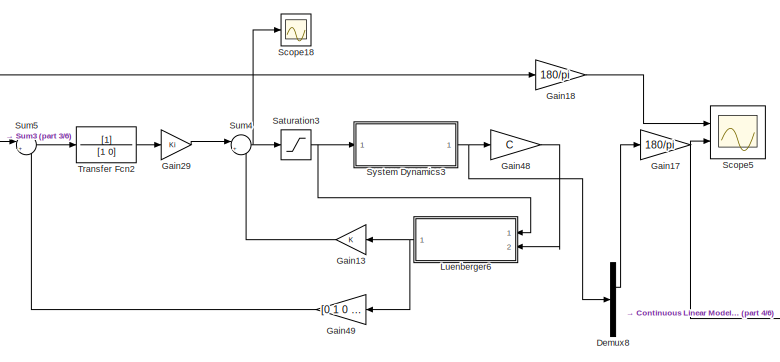
[diagram: root canvas - part 1/6, top center region]
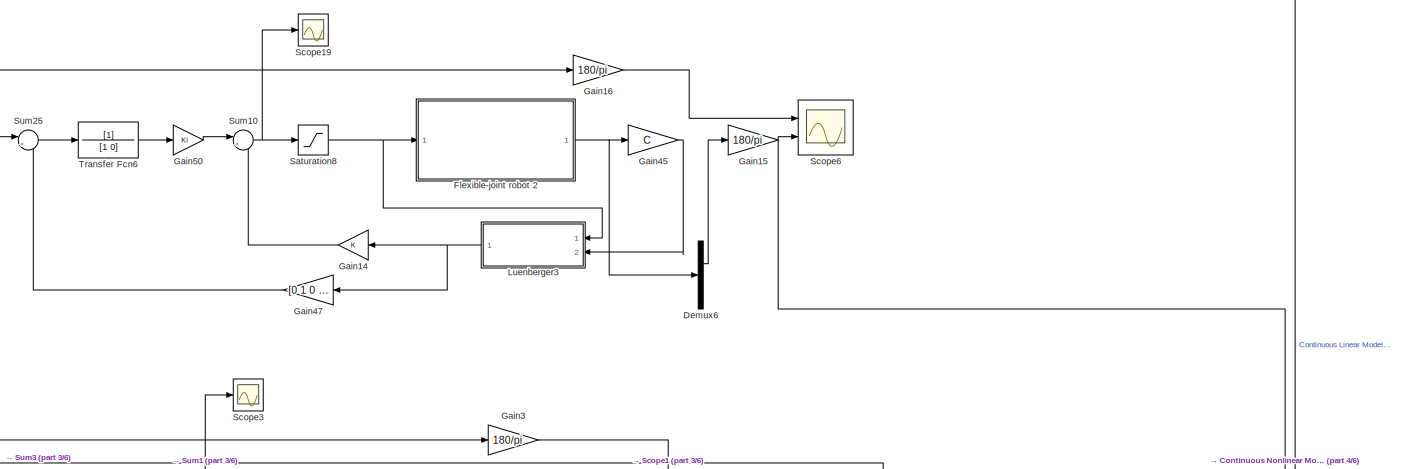
[diagram: root canvas - part 2/6, top center region]
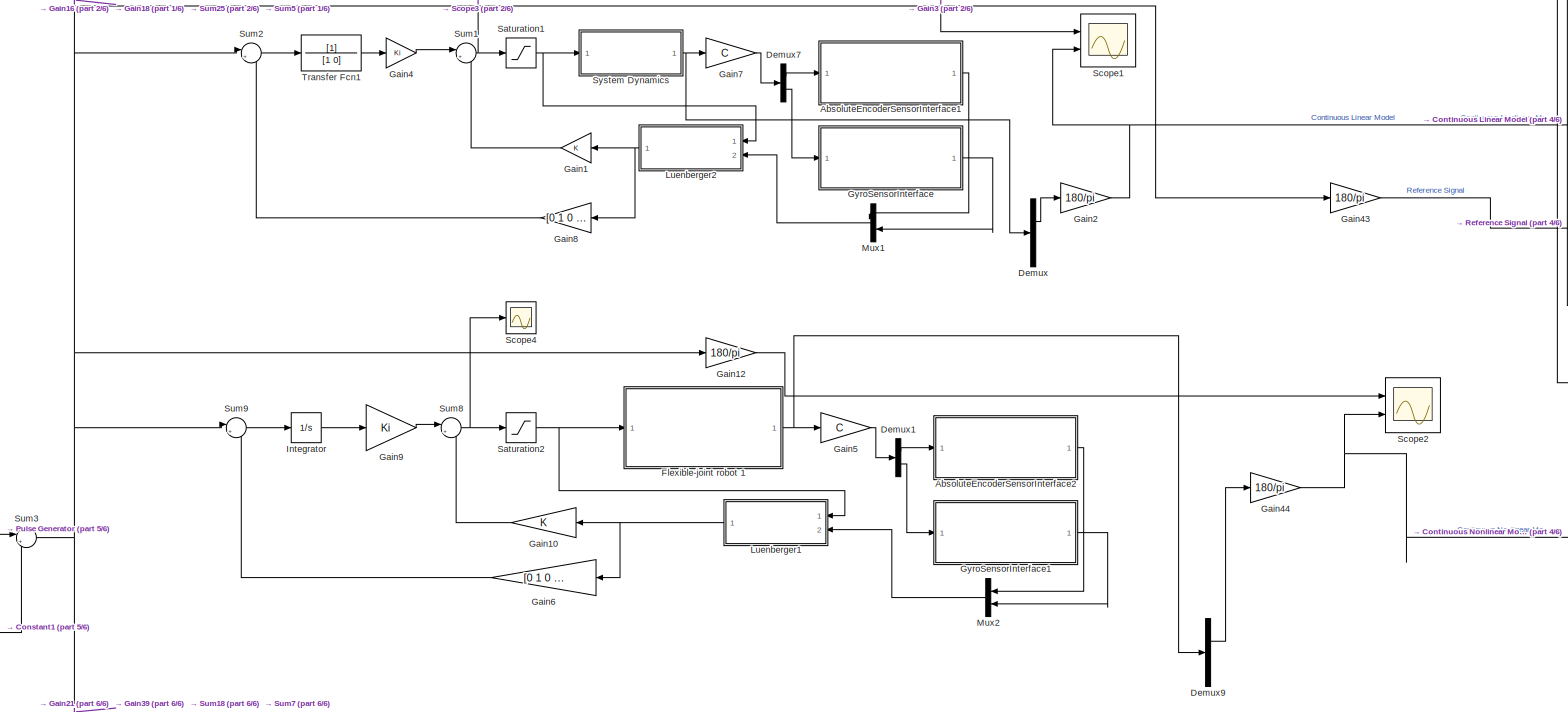
[diagram: root canvas - part 3/6, full width, middle band]
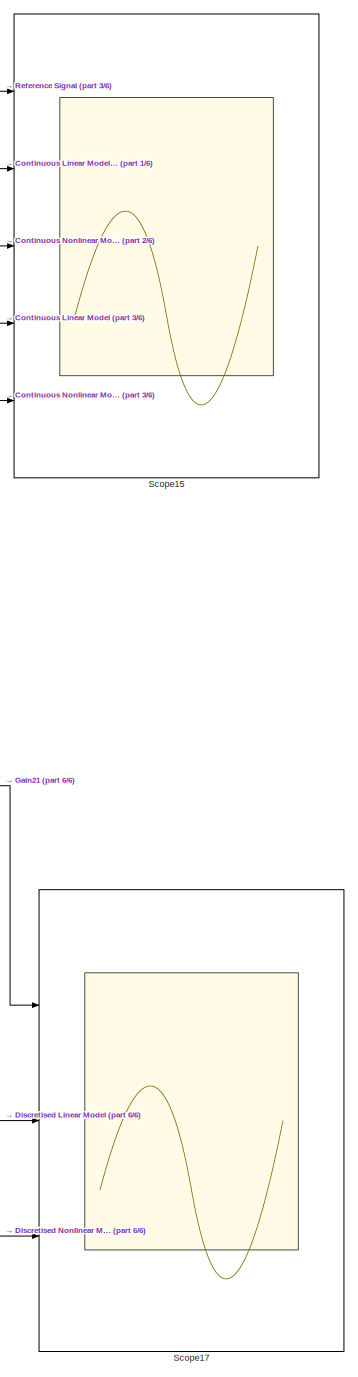
[diagram: root canvas - part 4/6, bottom right region]
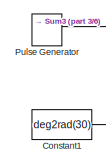
[diagram: root canvas - part 5/6, middle left region]
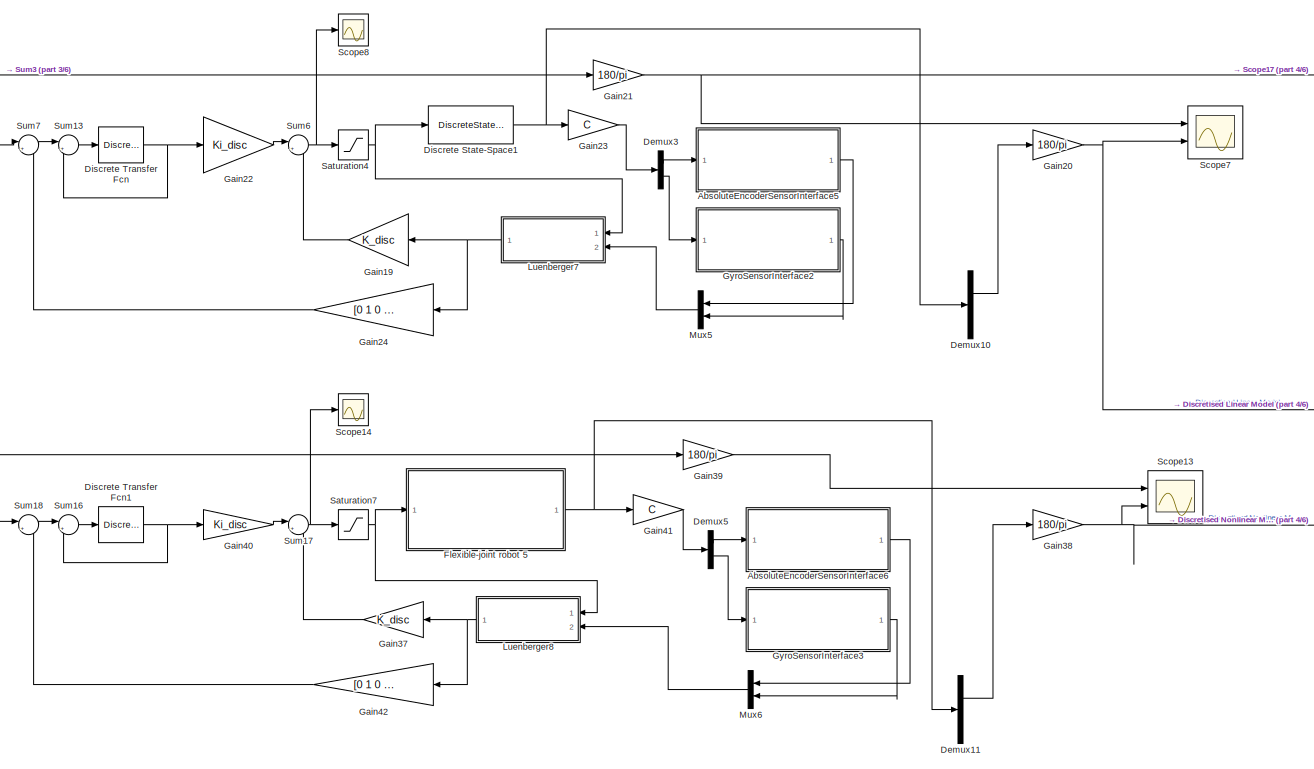
[diagram: root canvas - part 6/6, bottom center region]
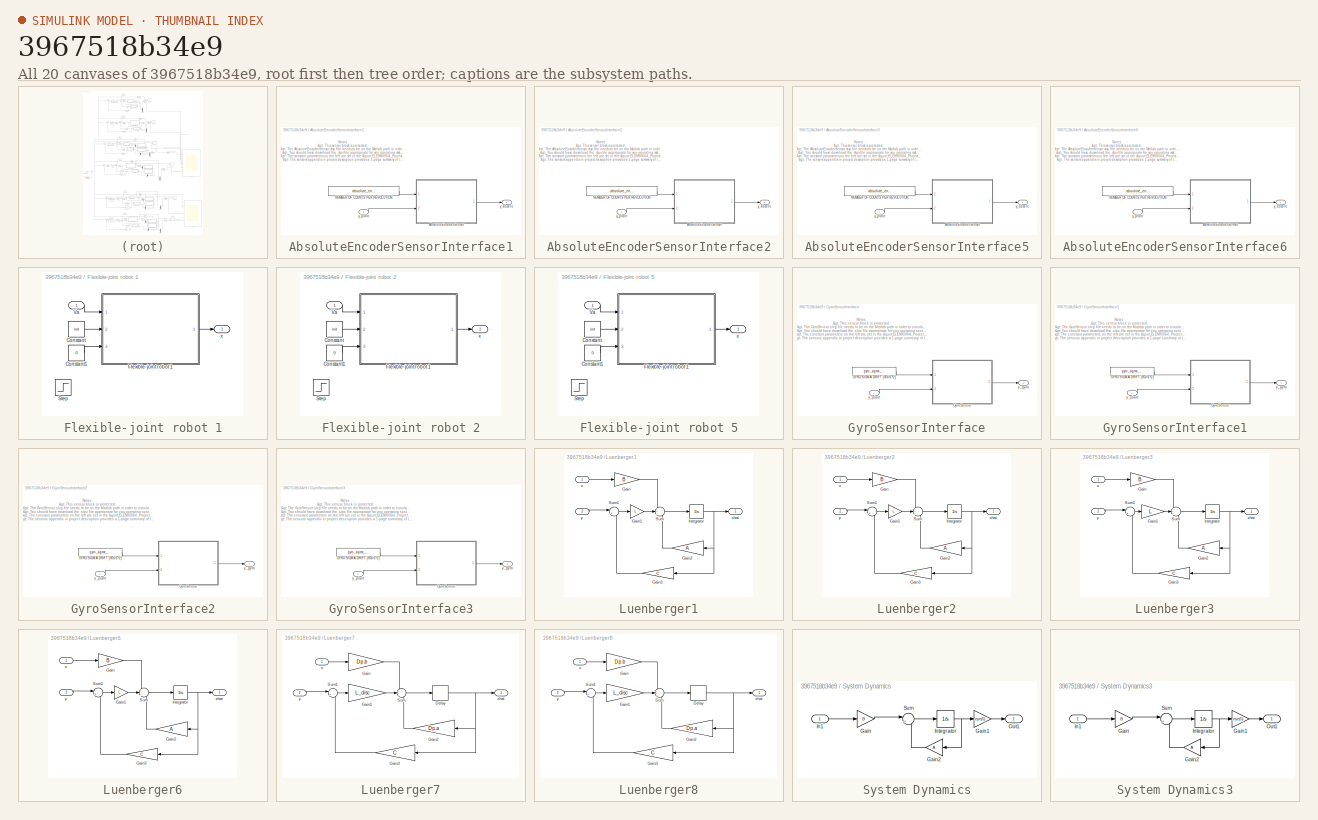
[diagram: thumbnail index - all 20 canvases of the model, root first then tree order]
MODEL slx_3967518b34e9
KIND model
CONFIG AbsTol = auto
CONFIG EnableMultiTasking = off
CONFIG FixedStep = auto
CONFIG MaxStep = auto
CONFIG MinStep = auto
CONFIG RelTol = 1e-3
CONFIG SampleTimeConstraint = Unconstrained
CONFIG SolverName = ode45
CONFIG StartTime = 0.0
CONFIG StopTime = 20
BLOCK [SubSystem] AbsoluteEncoderSensorInterface1
  Ports = [1, 1]
  RequestExecContextInheritance = off
  TreatAsAtomicUnit = on
BLOCK [ModelReference] AbsoluteEncoderSensorInterface1/AbsoluteEncoderSensor
  CopyOfModelProtected = on
  ModelNameDialog = AbsoluteEncoderSensor.slxp
  ModelReferenceVersion = 1.16
  Ports = [2, 1]
BLOCK [Constant] AbsoluteEncoderSensorInterface1/NUMBER OF COUNTS PER REVOLUTION
  Value = absolute_encoder_counts_per_revolution
BLOCK [Outport] AbsoluteEncoderSensorInterface1/y_absenc
BLOCK [Inport] AbsoluteEncoderSensorInterface1/y_plant
BLOCK [SubSystem] AbsoluteEncoderSensorInterface2
  Ports = [1, 1]
  RequestExecContextInheritance = off
  TreatAsAtomicUnit = on
BLOCK [ModelReference] AbsoluteEncoderSensorInterface2/AbsoluteEncoderSensor
  CopyOfModelProtected = on
  ModelNameDialog = AbsoluteEncoderSensor.slxp
  ModelReferenceVersion = 1.16
  Ports = [2, 1]
BLOCK [Constant] AbsoluteEncoderSensorInterface2/NUMBER OF COUNTS PER REVOLUTION
  Value = absolute_encoder_counts_per_revolution
BLOCK [Outport] AbsoluteEncoderSensorInterface2/y_absenc
BLOCK [Inport] AbsoluteEncoderSensorInterface2/y_plant
BLOCK [SubSystem] AbsoluteEncoderSensorInterface5
  Ports = [1, 1]
  RequestExecContextInheritance = off
  TreatAsAtomicUnit = on
BLOCK [ModelReference] AbsoluteEncoderSensorInterface5/AbsoluteEncoderSensor
  CopyOfModelProtected = on
  ModelNameDialog = AbsoluteEncoderSensor.slxp
  ModelReferenceVersion = 1.16
  Ports = [2, 1]
BLOCK [Constant] AbsoluteEncoderSensorInterface5/NUMBER OF COUNTS PER REVOLUTION
  Value = absolute_encoder_counts_per_revolution
BLOCK [Outport] AbsoluteEncoderSensorInterface5/y_absenc
BLOCK [Inport] AbsoluteEncoderSensorInterface5/y_plant
BLOCK [SubSystem] AbsoluteEncoderSensorInterface6
  Ports = [1, 1]
  RequestExecContextInheritance = off
  TreatAsAtomicUnit = on
BLOCK [ModelReference] AbsoluteEncoderSensorInterface6/AbsoluteEncoderSensor
  CopyOfModelProtected = on
  ModelNameDialog = AbsoluteEncoderSensor.slxp
  ModelReferenceVersion = 1.16
  Ports = [2, 1]
BLOCK [Constant] AbsoluteEncoderSensorInterface6/NUMBER OF COUNTS PER REVOLUTION
  Value = absolute_encoder_counts_per_revolution
BLOCK [Outport] AbsoluteEncoderSensorInterface6/y_absenc
BLOCK [Inport] AbsoluteEncoderSensorInterface6/y_plant
BLOCK [Constant] Constant1
  Value = deg2rad(30)
BLOCK [Demux] Demux
  Outputs = 5
  Ports = [1, 5]
BLOCK [Demux] Demux1
  Outputs = 2
  Ports = [1, 2]
BLOCK [Demux] Demux10
  Outputs = 5
  Ports = [1, 5]
BLOCK [Demux] Demux11
  Outputs = 5
  Ports = [1, 5]
BLOCK [Demux] Demux3
  Outputs = 2
  Ports = [1, 2]
BLOCK [Demux] Demux5
  Outputs = 2
  Ports = [1, 2]
BLOCK [Demux] Demux6
  Outputs = 5
  Ports = [1, 5]
BLOCK [Demux] Demux7
  Outputs = 2
  Ports = [1, 2]
BLOCK [Demux] Demux8
  Outputs = 5
  Ports = [1, 5]
BLOCK [Demux] Demux9
  Outputs = 5
  Ports = [1, 5]
BLOCK [DiscreteStateSpace] Discrete State-Space1
  A = Dp.a
  B = Dp.b
  C = Dp.c
  D = Dp.d
  SampleTime = T
BLOCK [DiscreteTransferFcn] Discrete Transfer Fcn
  Denominator = [1 0]
  InputPortMap = u0
  Ports = [1, 1]
BLOCK [DiscreteTransferFcn] Discrete Transfer Fcn1
  Denominator = [1 0]
  InputPortMap = u0
  Ports = [1, 1]
BLOCK [SubSystem] Flexible-joint robot 1
  Ports = [1, 1]
  RequestExecContextInheritance = off
BLOCK [Constant] Flexible-joint robot 1/Constant
  Value = init
BLOCK [Constant] Flexible-joint robot 1/Constant1
  Value = 0
BLOCK [ModelReference] Flexible-joint robot 1/Flexible-joint robot 1
  CopyOfModelProtected = on
  ModelNameDialog = Flexible_joint_robot_1
  ModelReferenceVersion = 1.65
  Ports = [3, 1]
BLOCK [Step] Flexible-joint robot 1/Step
  After = 0.05
  SampleTime = 0
BLOCK [Inport] Flexible-joint robot 1/Va
BLOCK [Outport] Flexible-joint robot 1/x
BLOCK [SubSystem] Flexible-joint robot 2
  Ports = [1, 1]
  RequestExecContextInheritance = off
BLOCK [Constant] Flexible-joint robot 2/Constant
  Value = init
BLOCK [Constant] Flexible-joint robot 2/Constant1
  Value = 0
BLOCK [ModelReference] Flexible-joint robot 2/Flexible-joint robot 1
  CopyOfModelProtected = on
  ModelNameDialog = Flexible_joint_robot_1
  ModelReferenceVersion = 1.65
  Ports = [3, 1]
BLOCK [Step] Flexible-joint robot 2/Step
  After = 0.05
  SampleTime = 0
BLOCK [Inport] Flexible-joint robot 2/Va
BLOCK [Outport] Flexible-joint robot 2/x
BLOCK [SubSystem] Flexible-joint robot 5
  Ports = [1, 1]
  RequestExecContextInheritance = off
BLOCK [Constant] Flexible-joint robot 5/Constant
  Value = init
BLOCK [Constant] Flexible-joint robot 5/Constant1
  Value = 0
BLOCK [ModelReference] Flexible-joint robot 5/Flexible-joint robot 1
  CopyOfModelProtected = on
  ModelNameDialog = Flexible_joint_robot_1
  ModelReferenceVersion = 1.65
  Ports = [3, 1]
BLOCK [Step] Flexible-joint robot 5/Step
  After = 0.05
  SampleTime = 0
BLOCK [Inport] Flexible-joint robot 5/Va
BLOCK [Outport] Flexible-joint robot 5/x
BLOCK [Gain] Gain1
  Gain = K
  Multiplication = Matrix(K*u)
  NameLocation = top
BLOCK [Gain] Gain10
  Gain = K
  Multiplication = Matrix(K*u)
  NameLocation = top
BLOCK [Gain] Gain12
  Gain = 180/pi
BLOCK [Gain] Gain13
  Gain = K
  Multiplication = Matrix(K*u)
  NameLocation = top
BLOCK [Gain] Gain14
  Gain = K
  Multiplication = Matrix(K*u)
  NameLocation = top
BLOCK [Gain] Gain15
  Gain = 180/pi
BLOCK [Gain] Gain16
  Gain = 180/pi
BLOCK [Gain] Gain17
  Gain = 180/pi
BLOCK [Gain] Gain18
  Gain = 180/pi
BLOCK [Gain] Gain19
  Gain = K_disc
  Multiplication = Matrix(K*u)
  NameLocation = top
BLOCK [Gain] Gain2
  Gain = 180/pi
BLOCK [Gain] Gain20
  Gain = 180/pi
BLOCK [Gain] Gain21
  Gain = 180/pi
BLOCK [Gain] Gain22
  Gain = Ki_disc
  Multiplication = Matrix(K*u) (u vector)
BLOCK [Gain] Gain23
  Gain = C
  Multiplication = Matrix(K*u)
BLOCK [Gain] Gain24
  Gain = [0 1 0 0 0]
  Multiplication = Matrix(K*u)
  NameLocation = top
BLOCK [Gain] Gain29
  Gain = Ki
  Multiplication = Matrix(K*u)
BLOCK [Gain] Gain3
  Gain = 180/pi
BLOCK [Gain] Gain37
  Gain = K_disc
  Multiplication = Matrix(K*u)
  NameLocation = top
BLOCK [Gain] Gain38
  Gain = 180/pi
BLOCK [Gain] Gain39
  Gain = 180/pi
BLOCK [Gain] Gain4
  Gain = Ki
  Multiplication = Matrix(K*u)
BLOCK [Gain] Gain40
  Gain = Ki_disc
  Multiplication = Matrix(K*u)
BLOCK [Gain] Gain41
  Gain = C
  Multiplication = Matrix(K*u)
BLOCK [Gain] Gain42
  Gain = [0 1 0 0 0]
  Multiplication = Matrix(K*u)
  NameLocation = top
BLOCK [Gain] Gain43
  Gain = 180/pi
BLOCK [Gain] Gain44
  Gain = 180/pi
BLOCK [Gain] Gain45
  Gain = C
  Multiplication = Matrix(K*u)
BLOCK [Gain] Gain47
  Gain = [0 1 0 0 0]
  Multiplication = Matrix(K*u)
  NameLocation = top
BLOCK [Gain] Gain48
  Gain = C
  Multiplication = Matrix(K*u)
BLOCK [Gain] Gain49
  Gain = [0 1 0 0 0]
  Multiplication = Matrix(K*u)
  NameLocation = top
BLOCK [Gain] Gain5
  Gain = C
  Multiplication = Matrix(K*u) (u vector)
BLOCK [Gain] Gain50
  Gain = Ki
  Multiplication = Matrix(K*u)
BLOCK [Gain] Gain6
  Gain = [0 1 0 0 0]
  Multiplication = Matrix(K*u)
  NameLocation = top
BLOCK [Gain] Gain7
  Gain = C
  Multiplication = Matrix(K*u)
BLOCK [Gain] Gain8
  Gain = [0 1 0 0 0]
  Multiplication = Matrix(K*u)
  NameLocation = top
BLOCK [Gain] Gain9
  Gain = Ki
  Multiplication = Matrix(K*u) (u vector)
BLOCK [SubSystem] GyroSensorInterface
  Ports = [1, 1]
  RequestExecContextInheritance = off
  TreatAsAtomicUnit = on
BLOCK [Constant] GyroSensorInterface/GYRO SIGMA DRIFT [rad//s^2]
  Value = gyro_sigma_drift
BLOCK [ModelReference] GyroSensorInterface/GyroSensor
  CopyOfModelProtected = on
  ModelNameDialog = GyroSensor.slxp
  ModelReferenceVersion = 1.18
  Ports = [2, 1]
BLOCK [Outport] GyroSensorInterface/y_gyro
BLOCK [Inport] GyroSensorInterface/y_plant
BLOCK [SubSystem] GyroSensorInterface1
  Ports = [1, 1]
  RequestExecContextInheritance = off
  TreatAsAtomicUnit = on
BLOCK [Constant] GyroSensorInterface1/GYRO SIGMA DRIFT [rad//s^2]
  Value = gyro_sigma_drift
BLOCK [ModelReference] GyroSensorInterface1/GyroSensor
  CopyOfModelProtected = on
  ModelNameDialog = GyroSensor.slxp
  ModelReferenceVersion = 1.18
  Ports = [2, 1]
BLOCK [Outport] GyroSensorInterface1/y_gyro
BLOCK [Inport] GyroSensorInterface1/y_plant
BLOCK [SubSystem] GyroSensorInterface2
  Ports = [1, 1]
  RequestExecContextInheritance = off
  TreatAsAtomicUnit = on
BLOCK [Constant] GyroSensorInterface2/GYRO SIGMA DRIFT [rad//s^2]
  Value = gyro_sigma_drift
BLOCK [ModelReference] GyroSensorInterface2/GyroSensor
  CopyOfModelProtected = on
  ModelNameDialog = GyroSensor.slxp
  ModelReferenceVersion = 1.18
  Ports = [2, 1]
BLOCK [Outport] GyroSensorInterface2/y_gyro
BLOCK [Inport] GyroSensorInterface2/y_plant
BLOCK [SubSystem] GyroSensorInterface3
  Ports = [1, 1]
  RequestExecContextInheritance = off
  TreatAsAtomicUnit = on
BLOCK [Constant] GyroSensorInterface3/GYRO SIGMA DRIFT [rad//s^2]
  Value = gyro_sigma_drift
BLOCK [ModelReference] GyroSensorInterface3/GyroSensor
  CopyOfModelProtected = on
  ModelNameDialog = GyroSensor.slxp
  ModelReferenceVersion = 1.18
  Ports = [2, 1]
BLOCK [Outport] GyroSensorInterface3/y_gyro
BLOCK [Inport] GyroSensorInterface3/y_plant
BLOCK [Integrator] Integrator
  Ports = [1, 1]
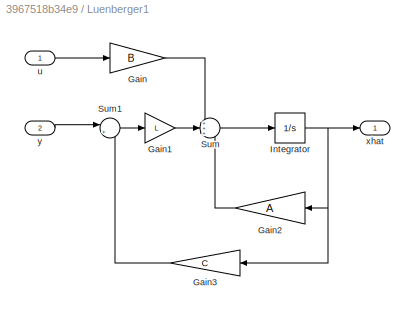
BLOCK [SubSystem] Luenberger1
  Ports = [2, 1]
  RequestExecContextInheritance = off
  TreatAsAtomicUnit = on
BLOCK [Gain] Luenberger1/Gain
  Gain = B
  Multiplication = Matrix(K*u) (u vector)
BLOCK [Gain] Luenberger1/Gain1
  Gain = L
  Multiplication = Matrix(K*u) (u vector)
BLOCK [Gain] Luenberger1/Gain2
  Gain = A
  Multiplication = Matrix(K*u) (u vector)
  NameLocation = top
BLOCK [Gain] Luenberger1/Gain3
  Gain = C
  Multiplication = Matrix(K*u) (u vector)
  NameLocation = top
BLOCK [Integrator] Luenberger1/Integrator
  Ports = [1, 1]
BLOCK [Sum] Luenberger1/Sum
  Inputs = +++
  Ports = [3, 1]
BLOCK [Sum] Luenberger1/Sum1
  Inputs = |+-
  Ports = [2, 1]
BLOCK [Inport] Luenberger1/u
BLOCK [Outport] Luenberger1/xhat
BLOCK [Inport] Luenberger1/y
  Port = 2
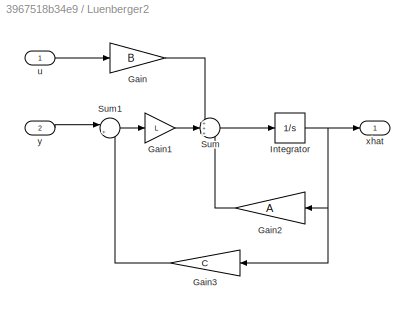
BLOCK [SubSystem] Luenberger2
  Ports = [2, 1]
  RequestExecContextInheritance = off
  TreatAsAtomicUnit = on
BLOCK [Gain] Luenberger2/Gain
  Gain = B
  Multiplication = Matrix(K*u) (u vector)
BLOCK [Gain] Luenberger2/Gain1
  Gain = L
  Multiplication = Matrix(K*u) (u vector)
BLOCK [Gain] Luenberger2/Gain2
  Gain = A
  Multiplication = Matrix(K*u) (u vector)
  NameLocation = top
BLOCK [Gain] Luenberger2/Gain3
  Gain = C
  Multiplication = Matrix(K*u) (u vector)
  NameLocation = top
BLOCK [Integrator] Luenberger2/Integrator
  Ports = [1, 1]
BLOCK [Sum] Luenberger2/Sum
  Inputs = +++
  Ports = [3, 1]
BLOCK [Sum] Luenberger2/Sum1
  Inputs = |+-
  Ports = [2, 1]
BLOCK [Inport] Luenberger2/u
BLOCK [Outport] Luenberger2/xhat
BLOCK [Inport] Luenberger2/y
  Port = 2
BLOCK [SubSystem] Luenberger3
  Ports = [2, 1]
  RequestExecContextInheritance = off
  TreatAsAtomicUnit = on
BLOCK [Gain] Luenberger3/Gain
  Gain = B
  Multiplication = Matrix(K*u) (u vector)
BLOCK [Gain] Luenberger3/Gain1
  Gain = L
  Multiplication = Matrix(K*u) (u vector)
BLOCK [Gain] Luenberger3/Gain2
  Gain = A
  Multiplication = Matrix(K*u) (u vector)
  NameLocation = top
BLOCK [Gain] Luenberger3/Gain3
  Gain = C
  Multiplication = Matrix(K*u) (u vector)
  NameLocation = top
BLOCK [Integrator] Luenberger3/Integrator
  Ports = [1, 1]
BLOCK [Sum] Luenberger3/Sum
  Inputs = +++
  Ports = [3, 1]
BLOCK [Sum] Luenberger3/Sum1
  Inputs = |+-
  Ports = [2, 1]
BLOCK [Inport] Luenberger3/u
BLOCK [Outport] Luenberger3/xhat
BLOCK [Inport] Luenberger3/y
  Port = 2
BLOCK [SubSystem] Luenberger6
  Ports = [2, 1]
  RequestExecContextInheritance = off
  TreatAsAtomicUnit = on
BLOCK [Gain] Luenberger6/Gain
  Gain = B
  Multiplication = Matrix(K*u) (u vector)
BLOCK [Gain] Luenberger6/Gain1
  Gain = L
  Multiplication = Matrix(K*u) (u vector)
BLOCK [Gain] Luenberger6/Gain2
  Gain = A
  Multiplication = Matrix(K*u) (u vector)
  NameLocation = top
BLOCK [Gain] Luenberger6/Gain3
  Gain = C
  Multiplication = Matrix(K*u) (u vector)
  NameLocation = top
BLOCK [Integrator] Luenberger6/Integrator
  Ports = [1, 1]
BLOCK [Sum] Luenberger6/Sum
  Inputs = +++
  Ports = [3, 1]
BLOCK [Sum] Luenberger6/Sum1
  Inputs = |+-
  Ports = [2, 1]
BLOCK [Inport] Luenberger6/u
BLOCK [Outport] Luenberger6/xhat
BLOCK [Inport] Luenberger6/y
  Port = 2
BLOCK [SubSystem] Luenberger7
  Ports = [2, 1]
  RequestExecContextInheritance = off
  TreatAsAtomicUnit = on
BLOCK [Delay] Luenberger7/Delay
  DelayLength = 1
  InputPortMap = u0
  Ports = [1, 1]
BLOCK [Gain] Luenberger7/Gain
  Gain = Dp.b
  Multiplication = Matrix(K*u) (u vector)
BLOCK [Gain] Luenberger7/Gain1
  Gain = L_disc
  Multiplication = Matrix(K*u) (u vector)
BLOCK [Gain] Luenberger7/Gain2
  Gain = Dp.a
  Multiplication = Matrix(K*u) (u vector)
  NameLocation = top
BLOCK [Gain] Luenberger7/Gain3
  Gain = C
  Multiplication = Matrix(K*u) (u vector)
  NameLocation = top
BLOCK [Sum] Luenberger7/Sum
  Inputs = +++
  Ports = [3, 1]
BLOCK [Sum] Luenberger7/Sum1
  Inputs = |+-
  Ports = [2, 1]
BLOCK [Inport] Luenberger7/u
BLOCK [Outport] Luenberger7/xhat
BLOCK [Inport] Luenberger7/y
  Port = 2
BLOCK [SubSystem] Luenberger8
  Ports = [2, 1]
  RequestExecContextInheritance = off
  TreatAsAtomicUnit = on
BLOCK [Delay] Luenberger8/Delay
  DelayLength = 1
  InputPortMap = u0
  Ports = [1, 1]
BLOCK [Gain] Luenberger8/Gain
  Gain = Dp.b
  Multiplication = Matrix(K*u) (u vector)
BLOCK [Gain] Luenberger8/Gain1
  Gain = L_disc
  Multiplication = Matrix(K*u) (u vector)
BLOCK [Gain] Luenberger8/Gain2
  Gain = Dp.a
  Multiplication = Matrix(K*u) (u vector)
  NameLocation = top
BLOCK [Gain] Luenberger8/Gain3
  Gain = C
  Multiplication = Matrix(K*u) (u vector)
  NameLocation = top
BLOCK [Sum] Luenberger8/Sum
  Inputs = +++
  Ports = [3, 1]
BLOCK [Sum] Luenberger8/Sum1
  Inputs = |+-
  Ports = [2, 1]
BLOCK [Inport] Luenberger8/u
BLOCK [Outport] Luenberger8/xhat
BLOCK [Inport] Luenberger8/y
  Port = 2
BLOCK [Mux] Mux1
  DisplayOption = bar
  Inputs = 2
  NameLocation = top
  Ports = [2, 1]
BLOCK [Mux] Mux2
  DisplayOption = bar
  Inputs = 2
  NameLocation = top
  Ports = [2, 1]
BLOCK [Mux] Mux5
  DisplayOption = bar
  Inputs = 2
  NameLocation = top
  Ports = [2, 1]
BLOCK [Mux] Mux6
  DisplayOption = bar
  Inputs = 2
  NameLocation = top
  Ports = [2, 1]
BLOCK [DiscretePulseGenerator] Pulse Generator
  Amplitude = deg2rad(30)
  Period = 5
  Ports = [0, 1]
  PulseType = Time based
  PulseWidth = 50
BLOCK [Saturate] Saturation1
  LowerLimit = -6
  UpperLimit = 6
BLOCK [Saturate] Saturation2
  LowerLimit = -6
  UpperLimit = 6
BLOCK [Saturate] Saturation3
  LowerLimit = -6
  UpperLimit = 6
BLOCK [Saturate] Saturation4
  LowerLimit = -6
  UpperLimit = 6
BLOCK [Saturate] Saturation7
  LowerLimit = -6
  UpperLimit = 6
BLOCK [Saturate] Saturation8
  LowerLimit = -6
  UpperLimit = 6
BLOCK [Scope] Scope1
  Floating = off
  NumInputPorts = 2
  Ports = [2]
  ScopeSpecificationString = Simulink.scopes.TimeScopeBlockCfg('CurrentConfiguration', extmgr.ConfigurationSet(extmgr.Configuration('Core','General UI',true),extmgr.Configuration('Core','Source UI',true),extmgr.Configuration('Sources','WiredSimulink',true),extmgr.Configuration('Visuals','Time Domain',true,'SerializedDisplays',{struct('MinYLimReal','-7.50002','MaxYLimReal','67.50022','YLabelReal','','MinYLimMag','0.00000','Max...<+1427ch>
BLOCK [Scope] Scope13
  Floating = off
  NumInputPorts = 2
  Ports = [2]
  ScopeSpecificationString = Simulink.scopes.TimeScopeBlockCfg('CurrentConfiguration', extmgr.ConfigurationSet(extmgr.Configuration('Core','General UI',true),extmgr.Configuration('Core','Source UI',true),extmgr.Configuration('Sources','WiredSimulink',true,'DataLoggingVariableName','ScopeData5'),extmgr.Configuration('Visuals','Time Domain',true,'SerializedDisplays',{struct('MinYLimReal','-11.96502','MaxYLimReal','107.68517','Y...<+1477ch>
BLOCK [Scope] Scope14
  Floating = off
  NumInputPorts = 1
  Ports = [1]
  ScopeSpecificationString = Simulink.scopes.TimeScopeBlockCfg('CurrentConfiguration', extmgr.ConfigurationSet(extmgr.Configuration('Core','General UI',true),extmgr.Configuration('Core','Source UI',true),extmgr.Configuration('Sources','WiredSimulink',true,'DataLoggingVariableName','ScopeData6'),extmgr.Configuration('Visuals','Time Domain',true,'SerializedDisplays',{struct('MinYLimReal','-1.74538','MaxYLimReal','15.70839','YLa...<+1386ch>
BLOCK [Scope] Scope15
  Floating = off
  NumInputPorts = 5
  Ports = [5]
  ScopeSpecificationString = Simulink.scopes.TimeScopeBlockCfg('CurrentConfiguration', extmgr.ConfigurationSet(extmgr.Configuration('Core','General UI',true,'FigureColor',[1 1 1]),extmgr.Configuration('Core','Source UI',true),extmgr.Configuration('Sources','WiredSimulink',true,'DataLoggingVariableName','ScopeData7'),extmgr.Configuration('Visuals','Time Domain',true,'SerializedDisplays',{struct('MinYLimReal','25','MaxYLimReal'...<+2545ch>
BLOCK [Scope] Scope17
  Floating = off
  NumInputPorts = 3
  Ports = [3]
  ScopeSpecificationString = Simulink.scopes.TimeScopeBlockCfg('CurrentConfiguration', extmgr.ConfigurationSet(extmgr.Configuration('Core','General UI',true,'FigureColor',[1 1 1]),extmgr.Configuration('Core','Source UI',true),extmgr.Configuration('Sources','WiredSimulink',true,'DataLoggingVariableName','ScopeData9'),extmgr.Configuration('Visuals','Time Domain',true,'SerializedDisplays',{struct('MinYLimReal','25','MaxYLimReal'...<+2493ch>
BLOCK [Scope] Scope18
  Floating = off
  NumInputPorts = 1
  Ports = [1]
  ScopeSpecificationString = Simulink.scopes.TimeScopeBlockCfg('CurrentConfiguration', extmgr.ConfigurationSet(extmgr.Configuration('Core','General UI',true),extmgr.Configuration('Core','Source UI',true),extmgr.Configuration('Sources','WiredSimulink',true,'DataLoggingVariableName','ScopeData1'),extmgr.Configuration('Visuals','Time Domain',true,'SerializedDisplays',{struct('MinYLimReal','-0.41777','MaxYLimReal','1.36119','YLab...<+1382ch>
BLOCK [Scope] Scope19
  Floating = off
  NumInputPorts = 1
  Ports = [1]
  ScopeSpecificationString = Simulink.scopes.TimeScopeBlockCfg('CurrentConfiguration', extmgr.ConfigurationSet(extmgr.Configuration('Core','General UI',true),extmgr.Configuration('Core','Source UI',true),extmgr.Configuration('Sources','WiredSimulink',true,'DataLoggingVariableName','ScopeData2'),extmgr.Configuration('Visuals','Time Domain',true,'SerializedDisplays',{struct('MinYLimReal','-1.40209','MaxYLimReal','3.94809','YLab...<+1412ch>
BLOCK [Scope] Scope2
  Floating = off
  NumInputPorts = 2
  Ports = [2]
  ScopeSpecificationString = Simulink.scopes.TimeScopeBlockCfg('CurrentConfiguration', extmgr.ConfigurationSet(extmgr.Configuration('Core','General UI',true),extmgr.Configuration('Core','Source UI',true),extmgr.Configuration('Sources','WiredSimulink',true,'DataLoggingVariableName','ScopeData2'),extmgr.Configuration('Visuals','Time Domain',true,'SerializedDisplays',{struct('MinYLimReal','-7.59672','MaxYLimReal','68.37045','YLa...<+1470ch>
BLOCK [Scope] Scope3
  Floating = off
  NumInputPorts = 1
  Ports = [1]
  ScopeSpecificationString = Simulink.scopes.TimeScopeBlockCfg('CurrentConfiguration', extmgr.ConfigurationSet(extmgr.Configuration('Core','General UI',true),extmgr.Configuration('Core','Source UI',true),extmgr.Configuration('Sources','WiredSimulink',true,'DataLoggingVariableName','ScopeData1'),extmgr.Configuration('Visuals','Time Domain',true,'SerializedDisplays',{struct('MinYLimReal','-0.41777','MaxYLimReal','1.36119','YLab...<+1382ch>
BLOCK [Scope] Scope4
  Floating = off
  NumInputPorts = 1
  Ports = [1]
  ScopeSpecificationString = Simulink.scopes.TimeScopeBlockCfg('CurrentConfiguration', extmgr.ConfigurationSet(extmgr.Configuration('Core','General UI',true),extmgr.Configuration('Core','Source UI',true),extmgr.Configuration('Sources','WiredSimulink',true,'DataLoggingVariableName','ScopeData3'),extmgr.Configuration('Visuals','Time Domain',true,'SerializedDisplays',{struct('MinYLimReal','-1.40209','MaxYLimReal','3.94809','YLab...<+1411ch>
BLOCK [Scope] Scope5
  Floating = off
  NumInputPorts = 2
  Ports = [2]
  ScopeSpecificationString = Simulink.scopes.TimeScopeBlockCfg('CurrentConfiguration', extmgr.ConfigurationSet(extmgr.Configuration('Core','General UI',true),extmgr.Configuration('Core','Source UI',true),extmgr.Configuration('Sources','WiredSimulink',true,'DataLoggingVariableName','ScopeData3'),extmgr.Configuration('Visuals','Time Domain',true,'SerializedDisplays',{struct('MinYLimReal','-7.50002','MaxYLimReal','67.50022','YLa...<+1466ch>
BLOCK [Scope] Scope6
  Floating = off
  NumInputPorts = 2
  Ports = [2]
  ScopeSpecificationString = Simulink.scopes.TimeScopeBlockCfg('CurrentConfiguration', extmgr.ConfigurationSet(extmgr.Configuration('Core','General UI',true),extmgr.Configuration('Core','Source UI',true),extmgr.Configuration('Sources','WiredSimulink',true,'DataLoggingVariableName','ScopeData4'),extmgr.Configuration('Visuals','Time Domain',true,'SerializedDisplays',{struct('MinYLimReal','-7.59672','MaxYLimReal','68.37045','YLa...<+1481ch>
BLOCK [Scope] Scope7
  Floating = off
  NumInputPorts = 2
  Ports = [2]
  ScopeSpecificationString = Simulink.scopes.TimeScopeBlockCfg('CurrentConfiguration', extmgr.ConfigurationSet(extmgr.Configuration('Core','General UI',true),extmgr.Configuration('Core','Source UI',true),extmgr.Configuration('Sources','WiredSimulink',true,'DataLoggingVariableName','ScopeData1'),extmgr.Configuration('Visuals','Time Domain',true,'SerializedDisplays',{struct('MinYLimReal','-9.94663','MaxYLimReal','89.51965','YLa...<+1469ch>
BLOCK [Scope] Scope8
  Floating = off
  NumInputPorts = 1
  Ports = [1]
  ScopeSpecificationString = Simulink.scopes.TimeScopeBlockCfg('CurrentConfiguration', extmgr.ConfigurationSet(extmgr.Configuration('Core','General UI',true),extmgr.Configuration('Core','Source UI',true),extmgr.Configuration('Sources','WiredSimulink',true,'DataLoggingVariableName','ScopeData2'),extmgr.Configuration('Visuals','Time Domain',true,'SerializedDisplays',{struct('MinYLimReal','-94298107625496331937314546601447939733...<+3820ch>
BLOCK [Sum] Sum1
  Inputs = |+-
  Ports = [2, 1]
BLOCK [Sum] Sum10
  Inputs = |+-
  Ports = [2, 1]
BLOCK [Sum] Sum13
  Inputs = |++
  Ports = [2, 1]
BLOCK [Sum] Sum16
  Inputs = |++
  Ports = [2, 1]
BLOCK [Sum] Sum17
  Inputs = |+-
  Ports = [2, 1]
BLOCK [Sum] Sum18
  Inputs = |+-
  Ports = [2, 1]
BLOCK [Sum] Sum2
  Inputs = |+-
  Ports = [2, 1]
BLOCK [Sum] Sum25
  Inputs = |+-
  Ports = [2, 1]
BLOCK [Sum] Sum3
  Inputs = |++
  Ports = [2, 1]
BLOCK [Sum] Sum4
  Inputs = |+-
  Ports = [2, 1]
BLOCK [Sum] Sum5
  Inputs = |+-
  Ports = [2, 1]
BLOCK [Sum] Sum6
  Inputs = |+-
  Ports = [2, 1]
BLOCK [Sum] Sum7
  Inputs = |+-
  Ports = [2, 1]
BLOCK [Sum] Sum8
  Inputs = |+-
  Ports = [2, 1]
BLOCK [Sum] Sum9
  Inputs = |+-
  Ports = [2, 1]
BLOCK [SubSystem] System Dynamics
  Ports = [1, 1]
  RequestExecContextInheritance = off
  TreatAsAtomicUnit = on
BLOCK [Gain] System Dynamics/Gain
  Gain = B
  Multiplication = Matrix(K*u)
BLOCK [Gain] System Dynamics/Gain1
  Gain = eye(5)
  Multiplication = Matrix(K*u)
BLOCK [Gain] System Dynamics/Gain2
  Gain = A
  Multiplication = Matrix(K*u)
  NameLocation = top
BLOCK [Inport] System Dynamics/In1
BLOCK [Integrator] System Dynamics/Integrator
  Ports = [1, 1]
BLOCK [Outport] System Dynamics/Out1
BLOCK [Sum] System Dynamics/Sum
  Inputs = |++
  Ports = [2, 1]
BLOCK [SubSystem] System Dynamics3
  Ports = [1, 1]
  RequestExecContextInheritance = off
  TreatAsAtomicUnit = on
BLOCK [Gain] System Dynamics3/Gain
  Gain = B
  Multiplication = Matrix(K*u)
BLOCK [Gain] System Dynamics3/Gain1
  Gain = eye(5)
  Multiplication = Matrix(K*u)
BLOCK [Gain] System Dynamics3/Gain2
  Gain = A
  Multiplication = Matrix(K*u)
  NameLocation = top
BLOCK [Inport] System Dynamics3/In1
BLOCK [Integrator] System Dynamics3/Integrator
  Ports = [1, 1]
BLOCK [Outport] System Dynamics3/Out1
BLOCK [Sum] System Dynamics3/Sum
  Inputs = |++
  Ports = [2, 1]
BLOCK [TransferFcn] Transfer Fcn1
  Denominator = [1 0]
BLOCK [TransferFcn] Transfer Fcn2
  Denominator = [1 0]
BLOCK [TransferFcn] Transfer Fcn6
  Denominator = [1 0]
ANNOTATION AbsoluteEncoderSensorInterface1: Notes: > This sensor block is protected. > The AbsoluteEncoderSensor.slxp file needs to be on the Matlab path in order to simulate this sensor. > You should have download the .slpx file appropriate for you operating system {Windows, Mac, Linux}. > The constant parameters on the left are set in the " ELEN90064_Project_Parameters.m " script. > The sensors appendix in project description provides a 1...<+190ch>
ANNOTATION AbsoluteEncoderSensorInterface2: Notes: > This sensor block is protected. > The AbsoluteEncoderSensor.slxp file needs to be on the Matlab path in order to simulate this sensor. > You should have download the .slpx file appropriate for you operating system {Windows, Mac, Linux}. > The constant parameters on the left are set in the " ELEN90064_Project_Parameters.m " script. > The sensors appendix in project description provides a 1...<+190ch>
ANNOTATION AbsoluteEncoderSensorInterface5: Notes: > This sensor block is protected. > The AbsoluteEncoderSensor.slxp file needs to be on the Matlab path in order to simulate this sensor. > You should have download the .slpx file appropriate for you operating system {Windows, Mac, Linux}. > The constant parameters on the left are set in the " ELEN90064_Project_Parameters.m " script. > The sensors appendix in project description provides a 1...<+190ch>
ANNOTATION AbsoluteEncoderSensorInterface6: Notes: > This sensor block is protected. > The AbsoluteEncoderSensor.slxp file needs to be on the Matlab path in order to simulate this sensor. > You should have download the .slpx file appropriate for you operating system {Windows, Mac, Linux}. > The constant parameters on the left are set in the " ELEN90064_Project_Parameters.m " script. > The sensors appendix in project description provides a 1...<+190ch>
ANNOTATION GyroSensorInterface: Notes: > This sensor block is protected. > The GyroSensor.slxp file needs to be on the Matlab path in order to simulate this sensor. > You should have download the .slpx file appropriate for you operating system {Windows, Mac, Linux}. > The constant parameters on the left are set in the " ELEN90064_Project_Parameters.m " script. > The sensors appendix in project description provides a 1-page summa...<+179ch>
ANNOTATION GyroSensorInterface1: Notes: > This sensor block is protected. > The GyroSensor.slxp file needs to be on the Matlab path in order to simulate this sensor. > You should have download the .slpx file appropriate for you operating system {Windows, Mac, Linux}. > The constant parameters on the left are set in the " ELEN90064_Project_Parameters.m " script. > The sensors appendix in project description provides a 1-page summa...<+179ch>
ANNOTATION GyroSensorInterface2: Notes: > This sensor block is protected. > The GyroSensor.slxp file needs to be on the Matlab path in order to simulate this sensor. > You should have download the .slpx file appropriate for you operating system {Windows, Mac, Linux}. > The constant parameters on the left are set in the " ELEN90064_Project_Parameters.m " script. > The sensors appendix in project description provides a 1-page summa...<+179ch>
ANNOTATION GyroSensorInterface3: Notes: > This sensor block is protected. > The GyroSensor.slxp file needs to be on the Matlab path in order to simulate this sensor. > You should have download the .slpx file appropriate for you operating system {Windows, Mac, Linux}. > The constant parameters on the left are set in the " ELEN90064_Project_Parameters.m " script. > The sensors appendix in project description provides a 1-page summa...<+179ch>
LINE AbsoluteEncoderSensorInterface1/AbsoluteEncoderSensor:1 -> AbsoluteEncoderSensorInterface1/y_absenc:1
LINE AbsoluteEncoderSensorInterface1/NUMBER OF COUNTS PER REVOLUTION:1 -> AbsoluteEncoderSensorInterface1/AbsoluteEncoderSensor:1
LINE AbsoluteEncoderSensorInterface1/y_plant:1 -> AbsoluteEncoderSensorInterface1/AbsoluteEncoderSensor:2
LINE AbsoluteEncoderSensorInterface1:1 -> Mux1:1
LINE AbsoluteEncoderSensorInterface2/AbsoluteEncoderSensor:1 -> AbsoluteEncoderSensorInterface2/y_absenc:1
LINE AbsoluteEncoderSensorInterface2/NUMBER OF COUNTS PER REVOLUTION:1 -> AbsoluteEncoderSensorInterface2/AbsoluteEncoderSensor:1
LINE AbsoluteEncoderSensorInterface2/y_plant:1 -> AbsoluteEncoderSensorInterface2/AbsoluteEncoderSensor:2
LINE AbsoluteEncoderSensorInterface2:1 -> Mux2:1
LINE AbsoluteEncoderSensorInterface5/AbsoluteEncoderSensor:1 -> AbsoluteEncoderSensorInterface5/y_absenc:1
LINE AbsoluteEncoderSensorInterface5/NUMBER OF COUNTS PER REVOLUTION:1 -> AbsoluteEncoderSensorInterface5/AbsoluteEncoderSensor:1
LINE AbsoluteEncoderSensorInterface5/y_plant:1 -> AbsoluteEncoderSensorInterface5/AbsoluteEncoderSensor:2
LINE AbsoluteEncoderSensorInterface5:1 -> Mux5:1
LINE AbsoluteEncoderSensorInterface6/AbsoluteEncoderSensor:1 -> AbsoluteEncoderSensorInterface6/y_absenc:1
LINE AbsoluteEncoderSensorInterface6/NUMBER OF COUNTS PER REVOLUTION:1 -> AbsoluteEncoderSensorInterface6/AbsoluteEncoderSensor:1
LINE AbsoluteEncoderSensorInterface6/y_plant:1 -> AbsoluteEncoderSensorInterface6/AbsoluteEncoderSensor:2
LINE AbsoluteEncoderSensorInterface6:1 -> Mux6:1
LINE Constant1:1 -> Sum3:2
LINE Demux10:2 -> Gain20:1
LINE Demux11:2 -> Gain38:1
LINE Demux1:1 -> AbsoluteEncoderSensorInterface2:1
LINE Demux1:2 -> GyroSensorInterface1:1
LINE Demux3:1 -> AbsoluteEncoderSensorInterface5:1
LINE Demux3:2 -> GyroSensorInterface2:1
LINE Demux5:1 -> AbsoluteEncoderSensorInterface6:1
LINE Demux5:2 -> GyroSensorInterface3:1
LINE Demux6:2 -> Gain15:1
LINE Demux7:1 -> AbsoluteEncoderSensorInterface1:1
LINE Demux7:2 -> GyroSensorInterface:1
LINE Demux8:2 -> Gain17:1
LINE Demux9:2 -> Gain44:1
LINE Demux:2 -> Gain2:1
NET Discrete State-Space1:1 -> Demux10:1, Gain23:1
NET Discrete Transfer Fcn1:1 -> Gain40:1, Sum16:2
NET Discrete Transfer Fcn:1 -> Gain22:1, Sum13:2
LINE Flexible-joint robot 1/Constant1:1 -> Flexible-joint robot 1/Flexible-joint robot 1:3
LINE Flexible-joint robot 1/Constant:1 -> Flexible-joint robot 1/Flexible-joint robot 1:2
LINE Flexible-joint robot 1/Flexible-joint robot 1:1 -> Flexible-joint robot 1/x:1
LINE Flexible-joint robot 1/Va:1 -> Flexible-joint robot 1/Flexible-joint robot 1:1
NET Flexible-joint robot 1:1 -> Demux9:1, Gain5:1
LINE Flexible-joint robot 2/Constant1:1 -> Flexible-joint robot 2/Flexible-joint robot 1:3
LINE Flexible-joint robot 2/Constant:1 -> Flexible-joint robot 2/Flexible-joint robot 1:2
LINE Flexible-joint robot 2/Flexible-joint robot 1:1 -> Flexible-joint robot 2/x:1
LINE Flexible-joint robot 2/Va:1 -> Flexible-joint robot 2/Flexible-joint robot 1:1
NET Flexible-joint robot 2:1 -> Demux6:1, Gain45:1
LINE Flexible-joint robot 5/Constant1:1 -> Flexible-joint robot 5/Flexible-joint robot 1:3
LINE Flexible-joint robot 5/Constant:1 -> Flexible-joint robot 5/Flexible-joint robot 1:2
LINE Flexible-joint robot 5/Flexible-joint robot 1:1 -> Flexible-joint robot 5/x:1
LINE Flexible-joint robot 5/Va:1 -> Flexible-joint robot 5/Flexible-joint robot 1:1
NET Flexible-joint robot 5:1 -> Demux11:1, Gain41:1
LINE Gain10:1 -> Sum8:2
LINE Gain12:1 -> Scope2:1
LINE Gain13:1 -> Sum4:2
LINE Gain14:1 -> Sum10:2
NET Gain15:1 -> Scope15:3, Scope6:2
LINE Gain16:1 -> Scope6:1
NET Gain17:1 -> Scope15:2, Scope5:2
LINE Gain18:1 -> Scope5:1
LINE Gain19:1 -> Sum6:2
LINE Gain1:1 -> Sum1:2
NET Gain20:1 -> Scope17:2, Scope7:2
NET Gain21:1 -> Scope17:1, Scope7:1
LINE Gain22:1 -> Sum6:1
LINE Gain23:1 -> Demux3:1
LINE Gain24:1 -> Sum7:2
LINE Gain29:1 -> Sum4:1
NET Gain2:1 -> Scope15:4, Scope1:2
LINE Gain37:1 -> Sum17:2
NET Gain38:1 -> Scope13:2, Scope17:3
LINE Gain39:1 -> Scope13:1
LINE Gain3:1 -> Scope1:1
LINE Gain40:1 -> Sum17:1
LINE Gain41:1 -> Demux5:1
LINE Gain42:1 -> Sum18:2
LINE Gain43:1 -> Scope15:1
NET Gain44:1 -> Scope15:5, Scope2:2
LINE Gain45:1 -> Luenberger3:2
LINE Gain47:1 -> Sum25:2
LINE Gain48:1 -> Luenberger6:2
LINE Gain49:1 -> Sum5:2
LINE Gain4:1 -> Sum1:1
LINE Gain50:1 -> Sum10:1
LINE Gain5:1 -> Demux1:1
LINE Gain6:1 -> Sum9:2
LINE Gain7:1 -> Demux7:1
LINE Gain8:1 -> Sum2:2
LINE Gain9:1 -> Sum8:1
LINE GyroSensorInterface/GYRO SIGMA DRIFT [rad//s^2]:1 -> GyroSensorInterface/GyroSensor:1
LINE GyroSensorInterface/GyroSensor:1 -> GyroSensorInterface/y_gyro:1
LINE GyroSensorInterface/y_plant:1 -> GyroSensorInterface/GyroSensor:2
LINE GyroSensorInterface1/GYRO SIGMA DRIFT [rad//s^2]:1 -> GyroSensorInterface1/GyroSensor:1
LINE GyroSensorInterface1/GyroSensor:1 -> GyroSensorInterface1/y_gyro:1
LINE GyroSensorInterface1/y_plant:1 -> GyroSensorInterface1/GyroSensor:2
LINE GyroSensorInterface1:1 -> Mux2:2
LINE GyroSensorInterface2/GYRO SIGMA DRIFT [rad//s^2]:1 -> GyroSensorInterface2/GyroSensor:1
LINE GyroSensorInterface2/GyroSensor:1 -> GyroSensorInterface2/y_gyro:1
LINE GyroSensorInterface2/y_plant:1 -> GyroSensorInterface2/GyroSensor:2
LINE GyroSensorInterface2:1 -> Mux5:2
LINE GyroSensorInterface3/GYRO SIGMA DRIFT [rad//s^2]:1 -> GyroSensorInterface3/GyroSensor:1
LINE GyroSensorInterface3/GyroSensor:1 -> GyroSensorInterface3/y_gyro:1
LINE GyroSensorInterface3/y_plant:1 -> GyroSensorInterface3/GyroSensor:2
LINE GyroSensorInterface3:1 -> Mux6:2
LINE GyroSensorInterface:1 -> Mux1:2
LINE Integrator:1 -> Gain9:1
LINE Luenberger1/Gain1:1 -> Luenberger1/Sum:2
LINE Luenberger1/Gain2:1 -> Luenberger1/Sum:3
LINE Luenberger1/Gain3:1 -> Luenberger1/Sum1:2
LINE Luenberger1/Gain:1 -> Luenberger1/Sum:1
NET Luenberger1/Integrator:1 -> Luenberger1/Gain2:1, Luenberger1/Gain3:1, Luenberger1/xhat:1
LINE Luenberger1/Sum1:1 -> Luenberger1/Gain1:1
LINE Luenberger1/Sum:1 -> Luenberger1/Integrator:1
LINE Luenberger1/u:1 -> Luenberger1/Gain:1
LINE Luenberger1/y:1 -> Luenberger1/Sum1:1
NET Luenberger1:1 -> Gain10:1, Gain6:1
LINE Luenberger2/Gain1:1 -> Luenberger2/Sum:2
LINE Luenberger2/Gain2:1 -> Luenberger2/Sum:3
LINE Luenberger2/Gain3:1 -> Luenberger2/Sum1:2
LINE Luenberger2/Gain:1 -> Luenberger2/Sum:1
NET Luenberger2/Integrator:1 -> Luenberger2/Gain2:1, Luenberger2/Gain3:1, Luenberger2/xhat:1
LINE Luenberger2/Sum1:1 -> Luenberger2/Gain1:1
LINE Luenberger2/Sum:1 -> Luenberger2/Integrator:1
LINE Luenberger2/u:1 -> Luenberger2/Gain:1
LINE Luenberger2/y:1 -> Luenberger2/Sum1:1
NET Luenberger2:1 -> Gain1:1, Gain8:1
LINE Luenberger3/Gain1:1 -> Luenberger3/Sum:2
LINE Luenberger3/Gain2:1 -> Luenberger3/Sum:3
LINE Luenberger3/Gain3:1 -> Luenberger3/Sum1:2
LINE Luenberger3/Gain:1 -> Luenberger3/Sum:1
NET Luenberger3/Integrator:1 -> Luenberger3/Gain2:1, Luenberger3/Gain3:1, Luenberger3/xhat:1
LINE Luenberger3/Sum1:1 -> Luenberger3/Gain1:1
LINE Luenberger3/Sum:1 -> Luenberger3/Integrator:1
LINE Luenberger3/u:1 -> Luenberger3/Gain:1
LINE Luenberger3/y:1 -> Luenberger3/Sum1:1
NET Luenberger3:1 -> Gain14:1, Gain47:1
LINE Luenberger6/Gain1:1 -> Luenberger6/Sum:2
LINE Luenberger6/Gain2:1 -> Luenberger6/Sum:3
LINE Luenberger6/Gain3:1 -> Luenberger6/Sum1:2
LINE Luenberger6/Gain:1 -> Luenberger6/Sum:1
NET Luenberger6/Integrator:1 -> Luenberger6/Gain2:1, Luenberger6/Gain3:1, Luenberger6/xhat:1
LINE Luenberger6/Sum1:1 -> Luenberger6/Gain1:1
LINE Luenberger6/Sum:1 -> Luenberger6/Integrator:1
LINE Luenberger6/u:1 -> Luenberger6/Gain:1
LINE Luenberger6/y:1 -> Luenberger6/Sum1:1
NET Luenberger6:1 -> Gain13:1, Gain49:1
NET Luenberger7/Delay:1 -> Luenberger7/Gain2:1, Luenberger7/Gain3:1, Luenberger7/xhat:1
LINE Luenberger7/Gain1:1 -> Luenberger7/Sum:2
LINE Luenberger7/Gain2:1 -> Luenberger7/Sum:3
LINE Luenberger7/Gain3:1 -> Luenberger7/Sum1:2
LINE Luenberger7/Gain:1 -> Luenberger7/Sum:1
LINE Luenberger7/Sum1:1 -> Luenberger7/Gain1:1
LINE Luenberger7/Sum:1 -> Luenberger7/Delay:1
LINE Luenberger7/u:1 -> Luenberger7/Gain:1
LINE Luenberger7/y:1 -> Luenberger7/Sum1:1
NET Luenberger7:1 -> Gain19:1, Gain24:1
NET Luenberger8/Delay:1 -> Luenberger8/Gain2:1, Luenberger8/Gain3:1, Luenberger8/xhat:1
LINE Luenberger8/Gain1:1 -> Luenberger8/Sum:2
LINE Luenberger8/Gain2:1 -> Luenberger8/Sum:3
LINE Luenberger8/Gain3:1 -> Luenberger8/Sum1:2
LINE Luenberger8/Gain:1 -> Luenberger8/Sum:1
LINE Luenberger8/Sum1:1 -> Luenberger8/Gain1:1
LINE Luenberger8/Sum:1 -> Luenberger8/Delay:1
LINE Luenberger8/u:1 -> Luenberger8/Gain:1
LINE Luenberger8/y:1 -> Luenberger8/Sum1:1
NET Luenberger8:1 -> Gain37:1, Gain42:1
LINE Mux1:1 -> Luenberger2:2
LINE Mux2:1 -> Luenberger1:2
LINE Mux5:1 -> Luenberger7:2
LINE Mux6:1 -> Luenberger8:2
LINE Pulse Generator:1 -> Sum3:1
NET Saturation1:1 -> Luenberger2:1, System Dynamics:1
NET Saturation2:1 -> Flexible-joint robot 1:1, Luenberger1:1
NET Saturation3:1 -> Luenberger6:1, System Dynamics3:1
NET Saturation4:1 -> Discrete State-Space1:1, Luenberger7:1
NET Saturation7:1 -> Flexible-joint robot 5:1, Luenberger8:1
NET Saturation8:1 -> Flexible-joint robot 2:1, Luenberger3:1
NET Sum10:1 -> Saturation8:1, Scope19:1
LINE Sum13:1 -> Discrete Transfer Fcn:1
LINE Sum16:1 -> Discrete Transfer Fcn1:1
NET Sum17:1 -> Saturation7:1, Scope14:1
LINE Sum18:1 -> Sum16:1
NET Sum1:1 -> Saturation1:1, Scope3:1
LINE Sum25:1 -> Transfer Fcn6:1
LINE Sum2:1 -> Transfer Fcn1:1
NET Sum3:1 -> Gain12:1, Gain16:1, Gain18:1, Gain21:1, Gain39:1, Gain3:1, Gain43:1, Sum18:1, Sum25:1, Sum2:1, Sum5:1, Sum7:1, Sum9:1
NET Sum4:1 -> Saturation3:1, Scope18:1
LINE Sum5:1 -> Transfer Fcn2:1
NET Sum6:1 -> Saturation4:1, Scope8:1
LINE Sum7:1 -> Sum13:1
NET Sum8:1 -> Saturation2:1, Scope4:1
LINE Sum9:1 -> Integrator:1
LINE System Dynamics/Gain1:1 -> System Dynamics/Out1:1
LINE System Dynamics/Gain2:1 -> System Dynamics/Sum:2
LINE System Dynamics/Gain:1 -> System Dynamics/Sum:1
LINE System Dynamics/In1:1 -> System Dynamics/Gain:1
NET System Dynamics/Integrator:1 -> System Dynamics/Gain1:1, System Dynamics/Gain2:1
LINE System Dynamics/Sum:1 -> System Dynamics/Integrator:1
LINE System Dynamics3/Gain1:1 -> System Dynamics3/Out1:1
LINE System Dynamics3/Gain2:1 -> System Dynamics3/Sum:2
LINE System Dynamics3/Gain:1 -> System Dynamics3/Sum:1
LINE System Dynamics3/In1:1 -> System Dynamics3/Gain:1
NET System Dynamics3/Integrator:1 -> System Dynamics3/Gain1:1, System Dynamics3/Gain2:1
LINE System Dynamics3/Sum:1 -> System Dynamics3/Integrator:1
NET System Dynamics3:1 -> Demux8:1, Gain48:1
NET System Dynamics:1 -> Demux:1, Gain7:1
LINE Transfer Fcn1:1 -> Gain4:1
LINE Transfer Fcn2:1 -> Gain29:1
LINE Transfer Fcn6:1 -> Gain50:1
note: NET lines group one-source signal fan-out (src -> all destinations, sorted); 1:1 wires keep LINE
